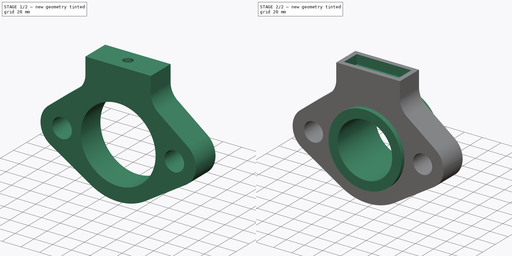
[diagram: build sequence overview — one tinted view per stage of 2, left to right]
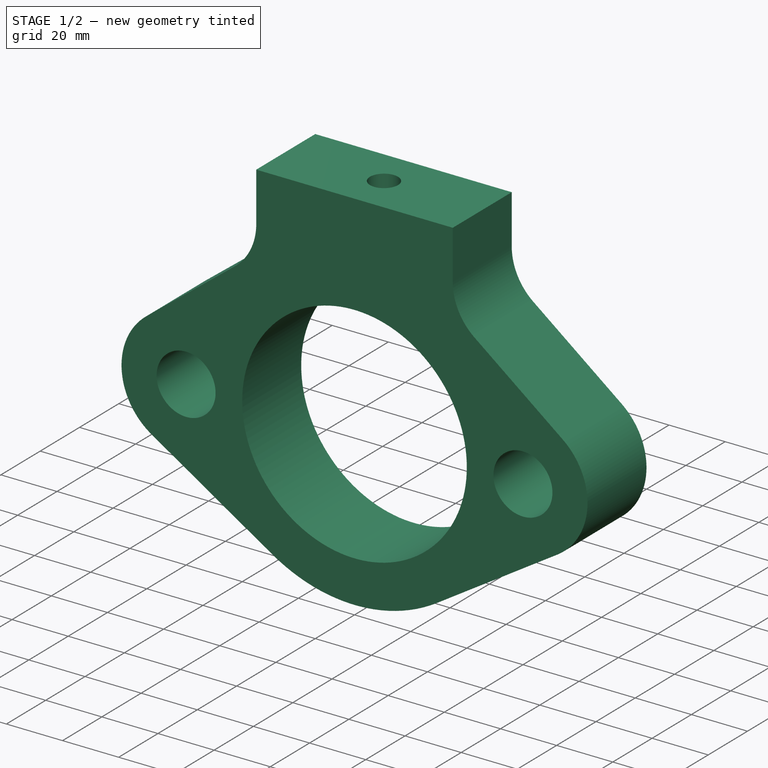
[diagram: stage 1 of 2 — iso view after this stage's code; geometry added in this stage tinted green]
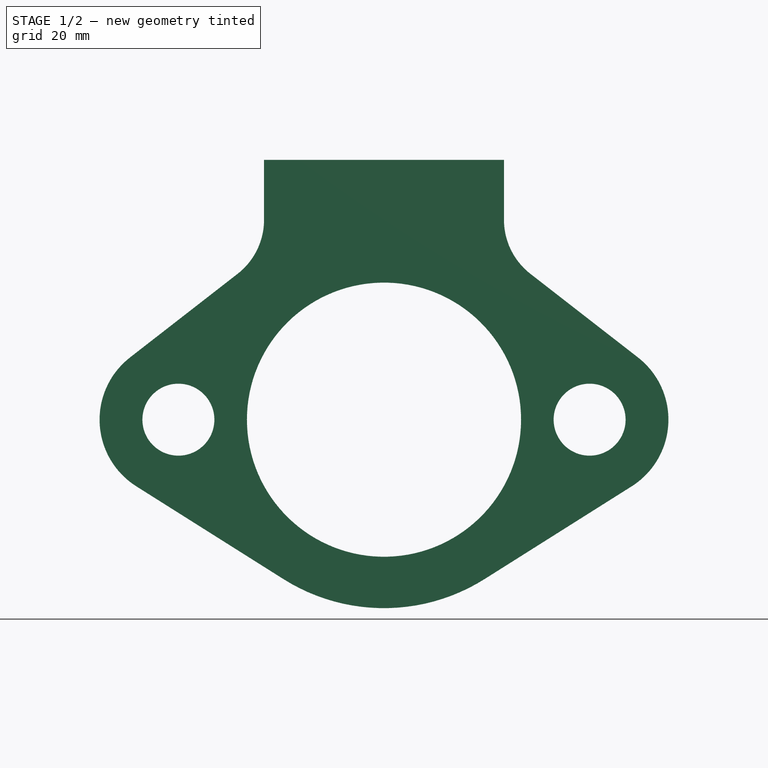
[diagram: stage 1 of 2 — front view after this stage's code; geometry added in this stage tinted green]
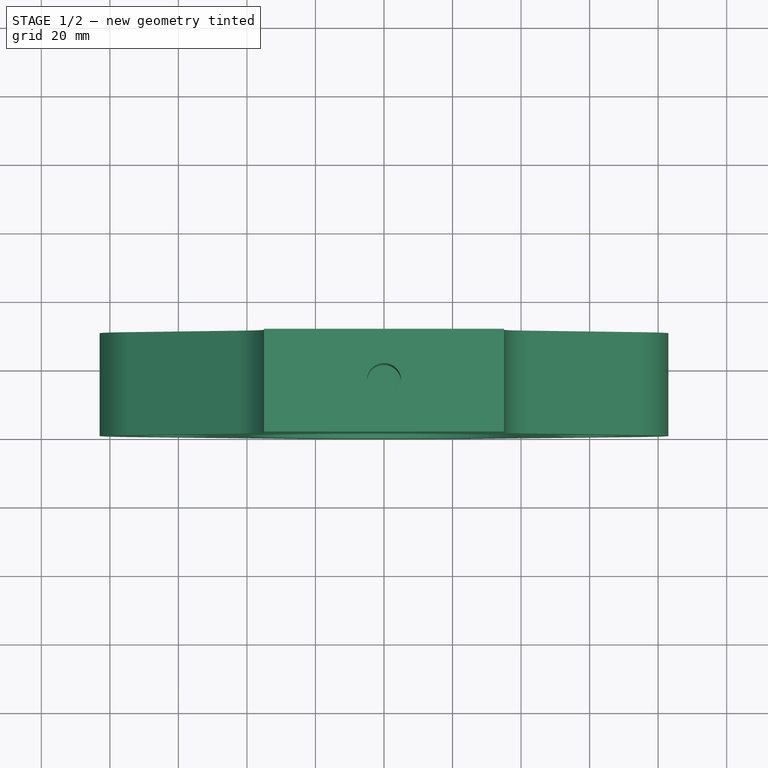
[diagram: stage 1 of 2 — top view after this stage's code; geometry added in this stage tinted green]
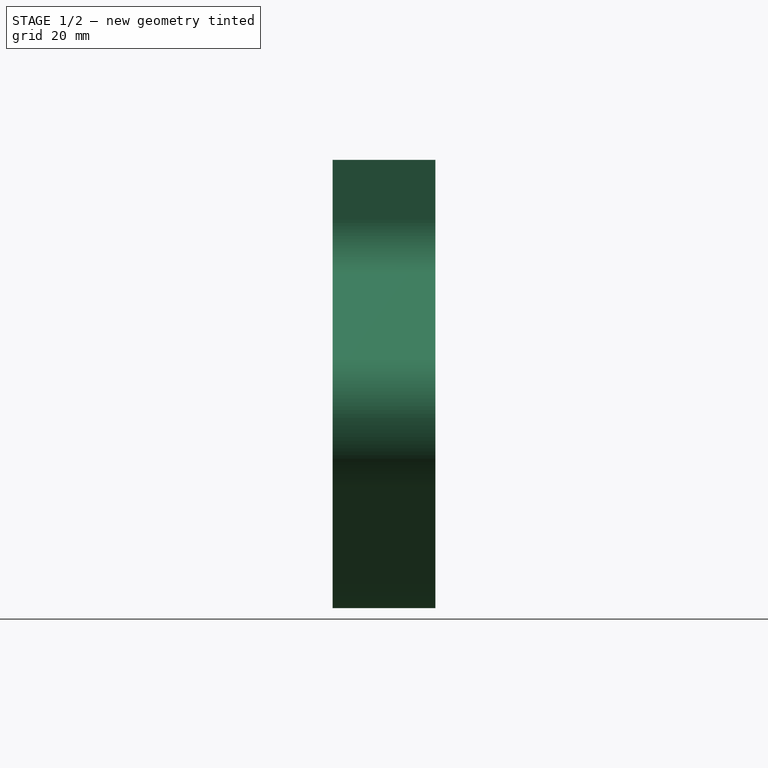
[diagram: stage 1 of 2 — right view after this stage's code; geometry added in this stage tinted green]
FCSTD DOCUMENT  (FreeCAD 0.18R4 (GitTag))
Label: Object13
License: All rights reserved
LicenseURL: http://en.wikipedia.org/wiki/All_rights_reserved
objects: Sketcher::SketchObject×4, PartDesign::Pad×2, PartDesign::Pocket×2, PartDesign::Plane×1, PartDesign::Body×1
note: 14 computed .brp shape members not serialized (recipe doc carries the construction recipe); baked Part::Feature solids carry a one-line shape summary decoded from their .brp

FEATURE [Sketcher::SketchObject] Sketch
  MapMode = 5
  Placement = pos=(0,0,0) rot=(1,0,0;1.5708rad)
  Support = -> [XZ_Plane]
  sketch-geometry (15):
    g0: Circle CenterX=0 CenterY=0 CenterZ=0 NormalX=0 NormalY=0 NormalZ=1 AngleXU=0 Radius=40
    g1: ArcOfCircle CenterX=0 CenterY=0 CenterZ=0 NormalX=0 NormalY=0 NormalZ=1 AngleXU=0 Radius=55 StartAngle=4.14985 EndAngle=5.27493
    g2: ArcOfCircle CenterX=-60 CenterY=0 CenterZ=0 NormalX=0 NormalY=0 NormalZ=1 AngleXU=0 Radius=23 StartAngle=2.23152 EndAngle=4.14985
    g3: ArcOfCircle CenterX=60 CenterY=0 CenterZ=0 NormalX=0 NormalY=0 NormalZ=1 AngleXU=0 Radius=23 StartAngle=5.27493 EndAngle=7.19326
    g4: LineSegment StartX=-72.2667 StartY=-19.4558 StartZ=0 EndX=-29.3333 EndY=-46.5248 EndZ=0
    g5: LineSegment StartX=29.3333 StartY=-46.5248 StartZ=0 EndX=72.2667 EndY=-19.4558 EndZ=0
    g6: Circle CenterX=-60 CenterY=0 CenterZ=0 NormalX=0 NormalY=0 NormalZ=1 AngleXU=0 Radius=10.5
    g7: Circle CenterX=60 CenterY=0 CenterZ=0 NormalX=0 NormalY=0 NormalZ=1 AngleXU=0 Radius=10.5
    g8: LineSegment StartX=-74.1148 StartY=18.1596 StartZ=0 EndX=-42.7263 EndY=42.5567 EndZ=0
    g9: LineSegment StartX=74.1148 StartY=18.1596 StartZ=0 EndX=42.7263 EndY=42.5567 EndZ=0
    g10: ArcOfCircle CenterX=-55 CenterY=58.3477 CenterZ=0 NormalX=0 NormalY=0 NormalZ=1 AngleXU=0 Radius=20 StartAngle=5.37311 EndAngle=6.28319
    g11: ArcOfCircle CenterX=55 CenterY=58.3477 CenterZ=0 NormalX=0 NormalY=0 NormalZ=1 AngleXU=0 Radius=20 StartAngle=3.14159 EndAngle=4.05167
    g12: LineSegment StartX=-35 StartY=58.3477 StartZ=0 EndX=-35 EndY=75.8037 EndZ=0
    g13: LineSegment StartX=-35 StartY=75.8037 StartZ=0 EndX=35 EndY=75.8037 EndZ=0
    g14: LineSegment StartX=35 StartY=75.8037 StartZ=0 EndX=35 EndY=58.3477 EndZ=0
  constraints (33):
    c: Radius(g0) = 40
    c: Coincident(g0,g-1)
    c: Coincident(g1,g0)
    c: Radius(g1) = 55
    c: PointOnObject(g2,g-1)
    c: Symmetric(g3,g2,g-2)
    c: DistanceX(g2,g3) = 120
    c: Radius(g2) = 23
    c: Radius(g3) = 23
    c: Tangent(g4,g2) = -1.5708
    c: Tangent(g1,g4) = -1.5708
    c: Tangent(g5,g1) = -1.5708
    c: Radius(g6) = 10.5
    c: Coincident(g6,g2)
    c: Equal(g6,g7) = 10.5
    c: Coincident(g3,g7)
    c: Radius(g11) = 20
    c: Radius(g10) = 20
    c: Tangent(g10,g8) = -1.5708
    c: Tangent(g8,g2) = 1.5708
    c: Tangent(g9,g11) = 1.5708
    c: Tangent(g9,g3) = -1.5708
    c: Horizontal(g2,g3)
    c: Tangent(g3,g5) = -1.5708
    c: Horizontal(g8,g9)
    c: Horizontal(g10,g11)
    c: Tangent(g10,g12) = -1.5708
    c: Coincident(g12,g13)
    c: Coincident(g13,g14)
    c: Vertical(g14)
    c: Horizontal(g13)
    c: DistanceX(g13,g13) = 70
    c: Tangent(g14,g11) = -1.5708
FEATURE [PartDesign::Pad] Pad
  Length = 30
  Length2 = 100
  Placement = pos=(0,0,0) rot=(1,0,0;1.5708rad)
  Profile = -> Sketch
  Reversed = true
  Type = 0
FEATURE [Sketcher::SketchObject] Sketch001
  MapMode = 5
  Support = -> [XY_Plane]
  sketch-geometry (1):
    g0: Circle CenterX=0 CenterY=15 CenterZ=0 NormalX=0 NormalY=0 NormalZ=1 AngleXU=0 Radius=5
  constraints (3):
    c: Radius(g0) = 5
    c: PointOnObject(g0,g-2)
    c: DistanceY(g-1,g0) = 15
FEATURE [PartDesign::Pocket] Pocket
  BaseFeature = -> Pad
  Length = 5
  Length2 = 100
  Placement = pos=(0,0,0) rot=(1,0,0;1.5708rad)
  Profile = -> Sketch001
  Reversed = true
  Type = 1
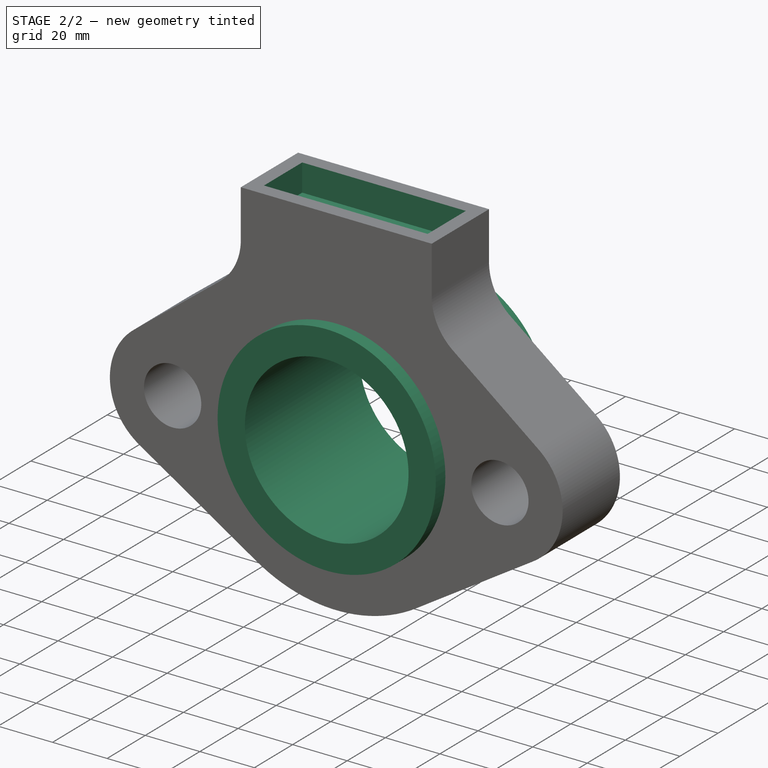
[diagram: stage 2 of 2 — iso view after this stage's code; geometry added in this stage tinted green]
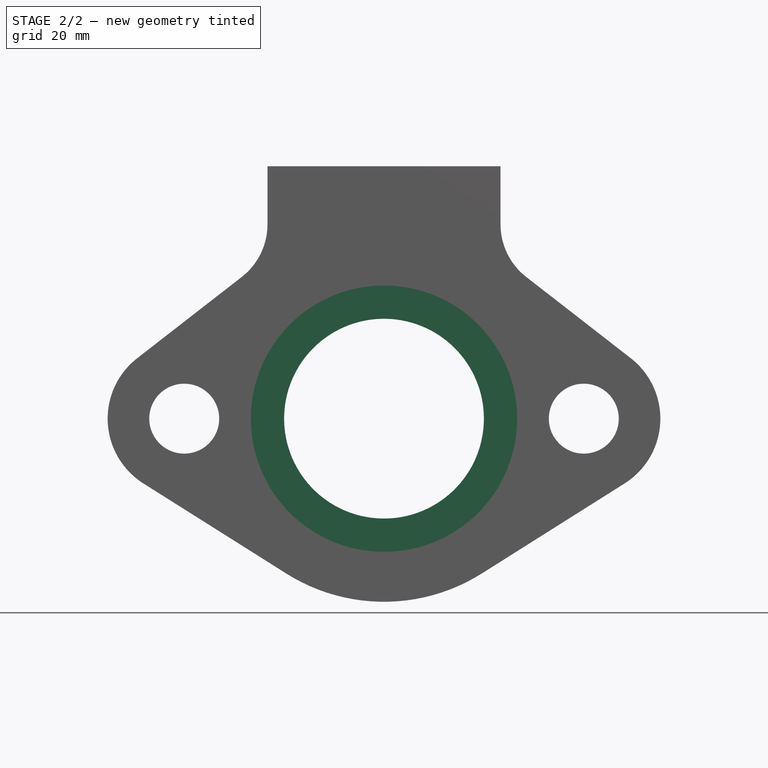
[diagram: stage 2 of 2 — front view after this stage's code; geometry added in this stage tinted green]
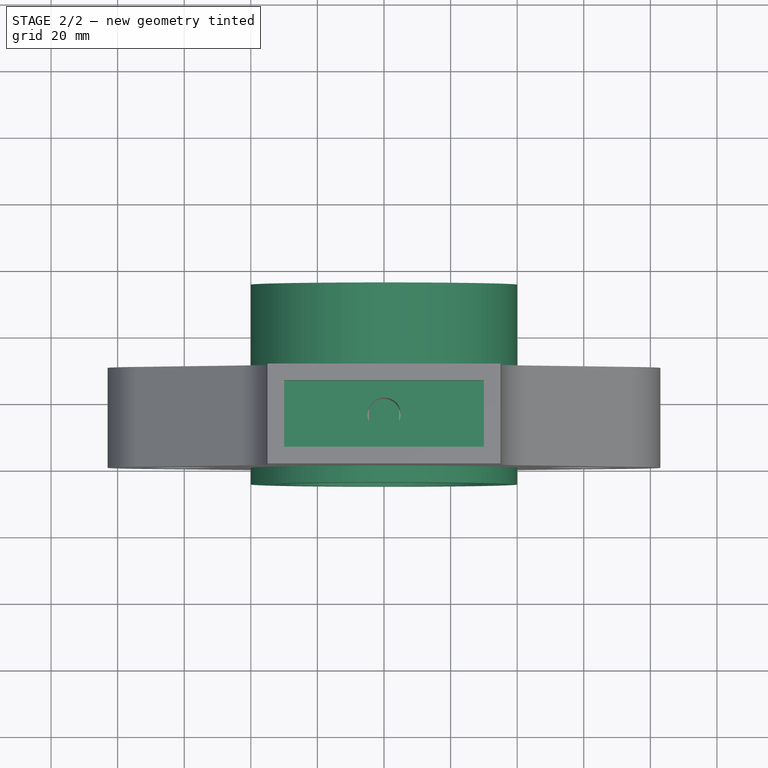
[diagram: stage 2 of 2 — top view after this stage's code; geometry added in this stage tinted green]
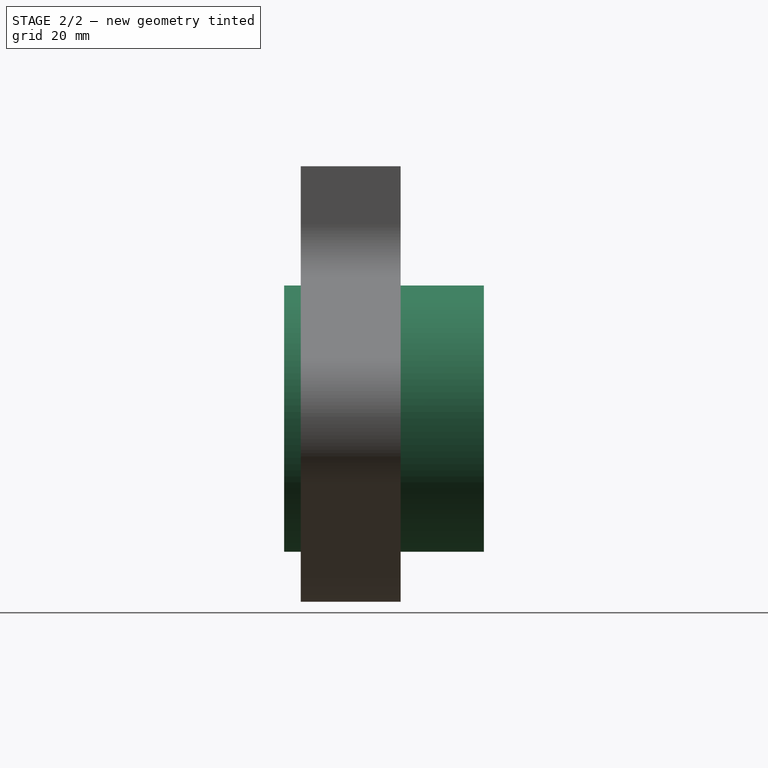
[diagram: stage 2 of 2 — right view after this stage's code; geometry added in this stage tinted green]
FEATURE [Sketcher::SketchObject] Sketch002
  MapMode = 5
  Placement = pos=(0,8.42e-14,75.8037) rot=(0,0,1;3.14159rad)
  Support = -> [Pocket]
  sketch-geometry (4):
    g0: LineSegment StartX=-30 StartY=-5 StartZ=0 EndX=30 EndY=-5 EndZ=0
    g1: LineSegment StartX=30 StartY=-5 StartZ=0 EndX=30 EndY=-25 EndZ=0
    g2: LineSegment StartX=30 StartY=-25 StartZ=0 EndX=-30 EndY=-25 EndZ=0
    g3: LineSegment StartX=-30 StartY=-25 StartZ=0 EndX=-30 EndY=-5 EndZ=0
  constraints (11):
    c: Coincident(g0,g1)
    c: Coincident(g1,g2)
    c: Coincident(g2,g3)
    c: Coincident(g3,g0)
    c: Horizontal(g2)
    c: Vertical(g1)
    c: Vertical(g3)
    c: DistanceY(g1,g1) = 20
    c: Symmetric(g0,g0,g-2)
    c: DistanceX(g0,g0) = 60
    c: DistanceY(g0,g-1) = 5
FEATURE [PartDesign::Pocket] Pocket001
  BaseFeature = -> Pocket
  Length = 10
  Length2 = 100
  Placement = pos=(0,0,0) rot=(1,0,0;1.5708rad)
  Profile = -> Sketch002
  Type = 0
FEATURE [PartDesign::Plane] DatumPlane
  AttachmentOffset = pos=(0,0,5) rot=(0,0,1;0rad)
  Length = 195.411
  MapMode = 5
  Placement = pos=(0,-5,8.9e-15) rot=(1,0,0;1.5708rad)
  ResizeMode = 0
  Support = -> [Pocket001]
  Width = 160.27
FEATURE [Sketcher::SketchObject] Sketch003
  MapMode = 5
  Placement = pos=(0,-5,8.9e-15) rot=(1,0,0;1.5708rad)
  Support = -> [DatumPlane]
  sketch-geometry (2):
    g0: Circle CenterX=0 CenterY=0 CenterZ=0 NormalX=0 NormalY=0 NormalZ=1 AngleXU=0 Radius=40
    g1: Circle CenterX=0 CenterY=0 CenterZ=0 NormalX=0 NormalY=0 NormalZ=1 AngleXU=0 Radius=30
  constraints (4):
    c: Coincident(g1,g0)
    c: Radius(g0) = 40
    c: Radius(g1) = 30
    c: Coincident(g-1,g0)
FEATURE [PartDesign::Pad] Pad001
  BaseFeature = -> Pocket001
  Length = 60
  Length2 = 100
  Placement = pos=(0,0,0) rot=(1,0,0;1.5708rad)
  Profile = -> Sketch003
  Reversed = true
  Type = 0
FEATURE [PartDesign::Body] Body
  Group = -> [Sketch,Pad,Sketch001,Pocket,Sketch002,Pocket001,Sketch003,DatumPlane,Pad001]
  Origin = -> Origin
  Tip = -> Pad001
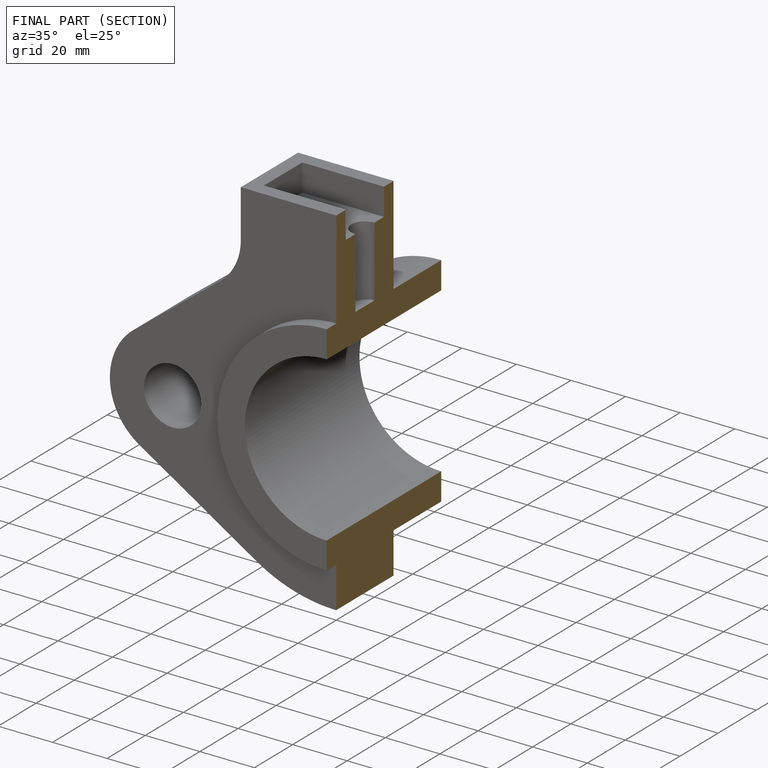
[diagram: finished part — half-section view (interior)]
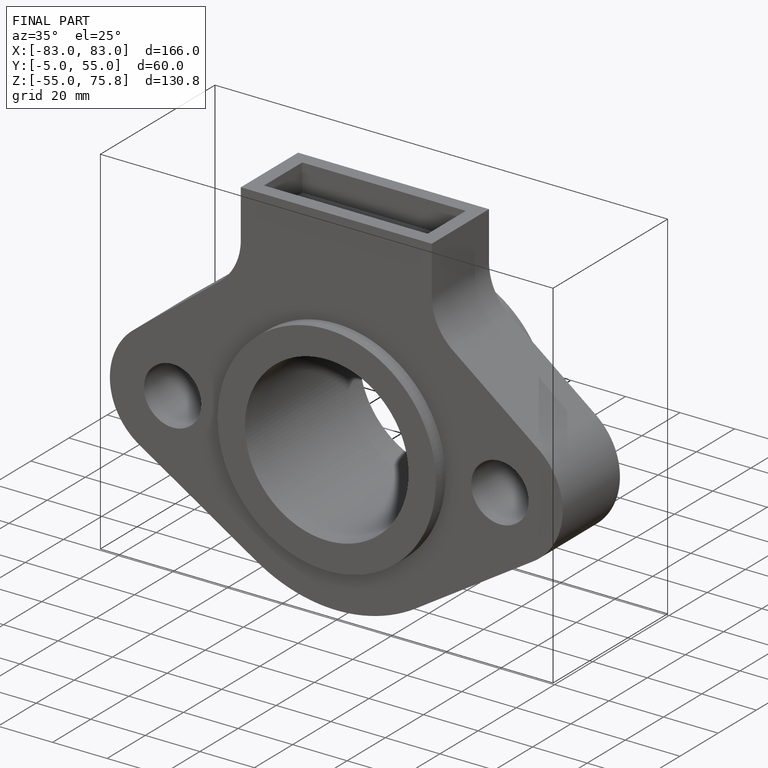
[diagram: finished part — iso view with bounding-box wireframe]
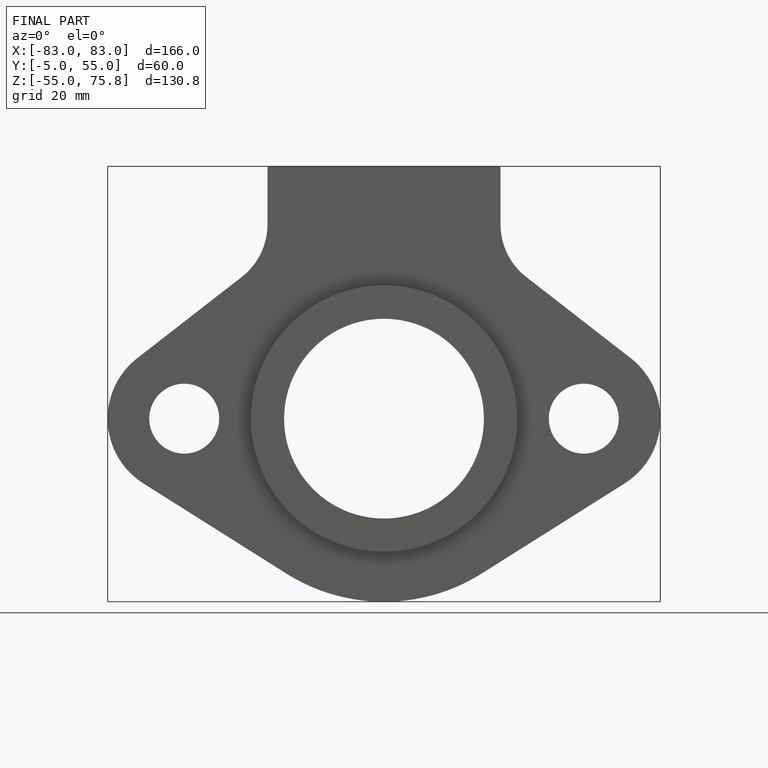
[diagram: finished part — front view with bounding-box wireframe]
